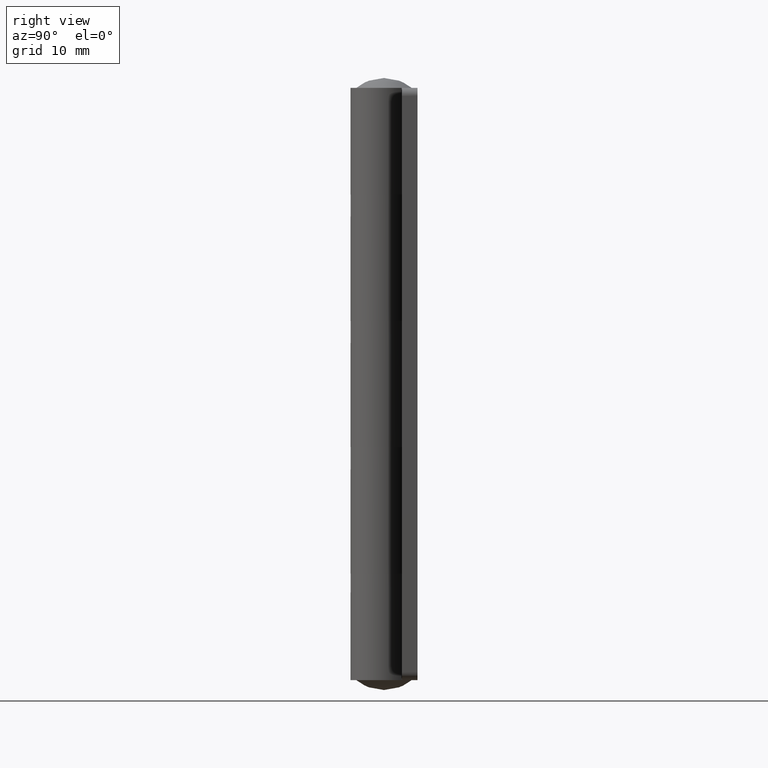
[diagram: clean part render]
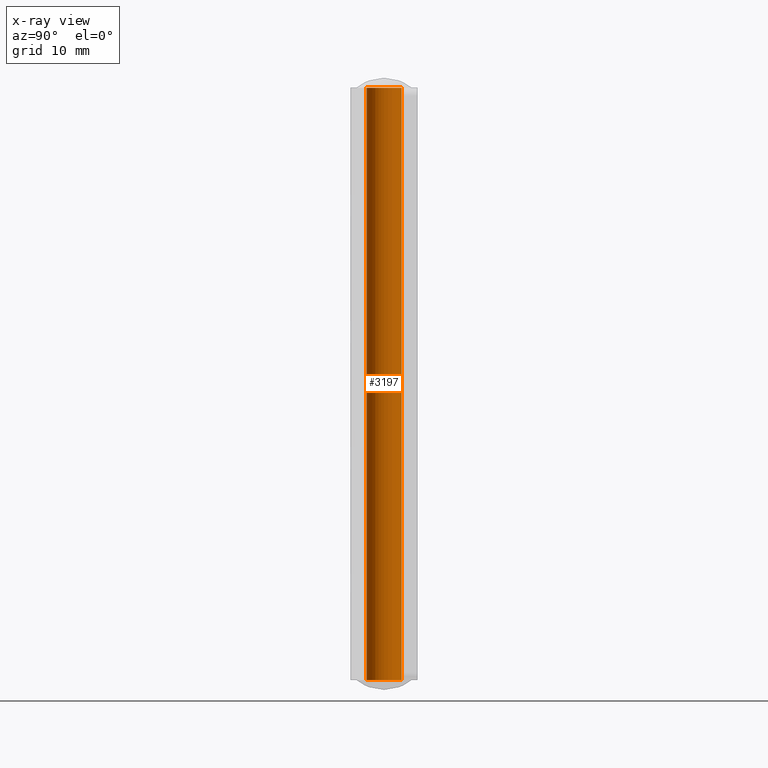
[diagram: x-ray — body ghosted, one internal face saturated and labeled with its STEP entity id]
A machine part, right view, then the same camera in x-ray: the body is ghosted and one INTERNAL B-rep face — a face not visible from any outside direction — is saturated and labeled: STEP entity #3197.
In plain terms, the highlighted face is a freeform B-spline surface patch.
Its self-contained STEP definition (entity closure, byte-faithful):
#3034=CARTESIAN_POINT('',(-0.265577028142498,2.234271434298561,-3.520891E-015));
#3035=VERTEX_POINT('',#3034);
#3053=CARTESIAN_POINT('',(-0.265577028142498,2.234271434298561,74.999985000000009));
#3054=VERTEX_POINT('',#3053);
#3055=CARTESIAN_POINT('',(-0.265577028142498,2.234271434298561,74.999985000000009));
#3056=CARTESIAN_POINT('',(-0.265577028142498,2.234271434298561,-3.520891E-015));
#3057=QUASI_UNIFORM_CURVE('',1,(#3055,#3056),.UNSPECIFIED.,.F.,.U.);
#3058=EDGE_CURVE('',#3054,#3035,#3057,.T.);
#3077=CARTESIAN_POINT('',(0.137359214180005,-2.245803296435242,74.999985000000009));
#3078=VERTEX_POINT('',#3077);
#3092=CARTESIAN_POINT('',(0.137359214180005,-2.245803296435242,-3.441691E-015));
#3093=VERTEX_POINT('',#3092);
#3094=CARTESIAN_POINT('',(0.137359214180005,-2.245803296435242,74.999985000000009));
#3095=CARTESIAN_POINT('',(0.137359214180005,-2.245803296435242,-3.441691E-015));
#3096=QUASI_UNIFORM_CURVE('',1,(#3094,#3095),.UNSPECIFIED.,.F.,.U.);
#3097=EDGE_CURVE('',#3078,#3093,#3096,.T.);
#3115=CARTESIAN_POINT('',(0.137359213953422,-2.245803296449100,76.874984625000025));
#3116=CARTESIAN_POINT('',(-2.108444082495679,-2.383162510402523,76.874984625000025));
#3117=CARTESIAN_POINT('',(-2.245803296449100,-0.137359213953422,76.874984625000025));
#3118=CARTESIAN_POINT('',(-2.375518942648081,1.983472854388789,76.874984625000025));
#3119=CARTESIAN_POINT('',(-0.265577027977695,2.234271434318151,76.874984625000053));
#3120=CARTESIAN_POINT('',(0.137359213953422,-2.245803296449100,-1.921874615625001));
#3121=CARTESIAN_POINT('',(-2.108444082495679,-2.383162510402523,-1.921874615625001));
#3122=CARTESIAN_POINT('',(-2.245803296449100,-0.137359213953422,-1.921874615625001));
#3123=CARTESIAN_POINT('',(-2.375518942648081,1.983472854388789,-1.921874615625001));
#3124=CARTESIAN_POINT('',(-0.265577027977695,2.234271434318151,-1.921874615625001));
#3132=(BOUNDED_SURFACE()B_SPLINE_SURFACE(2,1,((#3115,#3120),(#3116,#3121),(#3117,#3122),(#3118,#3123),(#3119,#3124)),.UNSPECIFIED.,.F.,.F.,.U.)B_SPLINE_SURFACE_WITH_KNOTS((3,2,3),(2,2),(0.0,3.727922061357689,7.306727240261070),(0.0,78.796859240625054),.UNSPECIFIED.)GEOMETRIC_REPRESENTATION_ITEM()RATIONAL_B_SPLINE_SURFACE(((1.0,1.0),(0.707106781186548,0.707106781186548),(1.0,1.0),(0.718822509939086,0.718822509939086),(0.977505800795127,0.977505800795127)))REPRESENTATION_ITEM('')SURFACE());
#3133=CARTESIAN_POINT('',(-2.249999999999900,0.0,0.0));
#3134=VERTEX_POINT('',#3133);
#3135=CARTESIAN_POINT('',(-2.249999999999900,0.0,0.0));
#3136=CARTESIAN_POINT('',(-2.249999999999899,1.998392683093605,0.0));
#3137=CARTESIAN_POINT('',(-0.265577028142498,2.234271434298562,-3.520891E-015));
#3145=(BOUNDED_CURVE()B_SPLINE_CURVE(2,(#3135,#3136,#3137),.UNSPECIFIED.,.F.,.U.)B_SPLINE_CURVE_WITH_KNOTS((3,3),(0.0,0.229562473490712),.UNSPECIFIED.)CURVE()GEOMETRIC_REPRESENTATION_ITEM()RATIONAL_B_SPLINE_CURVE((1.0,0.731050832882110,0.956026754139018))REPRESENTATION_ITEM(''));
#3146=EDGE_CURVE('',#3134,#3035,#3145,.T.);
#3147=ORIENTED_EDGE('',*,*,#3146,.F.);
#3148=CARTESIAN_POINT('',(0.137359214180005,-2.245803296435242,-3.441691E-015));
#3149=CARTESIAN_POINT('',(0.068743717649040,-2.249999999999900,0.0));
#3150=CARTESIAN_POINT('',(0.0,-2.249999999999900,0.0));
#3151=CARTESIAN_POINT('',(-2.249999999999900,-2.249999999999900,0.0));
#3152=CARTESIAN_POINT('',(-2.249999999999900,0.0,0.0));
#3160=(BOUNDED_CURVE()B_SPLINE_CURVE(2,(#3148,#3149,#3150,#3151,#3152),.UNSPECIFIED.,.F.,.U.)B_SPLINE_CURVE_WITH_KNOTS((3,2,3),(0.739332962207151,0.750000000000000,1.0),.UNSPECIFIED.)CURVE()GEOMETRIC_REPRESENTATION_ITEM()RATIONAL_B_SPLINE_CURVE((0.976072041598582,0.987502787862591,1.0,0.707106781186548,1.0))REPRESENTATION_ITEM(''));
#3161=EDGE_CURVE('',#3093,#3134,#3160,.T.);
#3162=ORIENTED_EDGE('',*,*,#3161,.F.);
#3163=ORIENTED_EDGE('',*,*,#3097,.F.);
#3164=CARTESIAN_POINT('',(-2.249999999999900,0.0,74.999985000000009));
#3165=VERTEX_POINT('',#3164);
#3166=CARTESIAN_POINT('',(0.137359214180005,-2.245803296435242,74.999985000000009));
#3167=CARTESIAN_POINT('',(0.068743717649040,-2.249999999999900,74.999985000000009));
#3168=CARTESIAN_POINT('',(0.0,-2.249999999999900,74.999985000000009));
#3169=CARTESIAN_POINT('',(-2.249999999999900,-2.249999999999900,74.999984999999995));
#3170=CARTESIAN_POINT('',(-2.249999999999900,0.0,74.999985000000009));
#3178=(BOUNDED_CURVE()B_SPLINE_CURVE(2,(#3166,#3167,#3168,#3169,#3170),.UNSPECIFIED.,.F.,.U.)B_SPLINE_CURVE_WITH_KNOTS((3,2,3),(0.739332962207151,0.750000000000000,1.0),.UNSPECIFIED.)CURVE()GEOMETRIC_REPRESENTATION_ITEM()RATIONAL_B_SPLINE_CURVE((0.976072041598582,0.987502787862591,1.0,0.707106781186548,1.0))REPRESENTATION_ITEM(''));
#3179=EDGE_CURVE('',#3078,#3165,#3178,.T.);
#3180=ORIENTED_EDGE('',*,*,#3179,.T.);
#3181=CARTESIAN_POINT('',(-2.249999999999900,0.0,74.999985000000009));
#3182=CARTESIAN_POINT('',(-2.249999999999899,1.998392683093605,74.999984999999995));
#3183=CARTESIAN_POINT('',(-0.265577028142498,2.234271434298562,74.999985000000009));
#3191=(BOUNDED_CURVE()B_SPLINE_CURVE(2,(#3181,#3182,#3183),.UNSPECIFIED.,.F.,.U.)B_SPLINE_CURVE_WITH_KNOTS((3,3),(0.0,0.229562473490712),.UNSPECIFIED.)CURVE()GEOMETRIC_REPRESENTATION_ITEM()RATIONAL_B_SPLINE_CURVE((1.0,0.731050832882110,0.956026754139018))REPRESENTATION_ITEM(''));
#3192=EDGE_CURVE('',#3165,#3054,#3191,.T.);
#3193=ORIENTED_EDGE('',*,*,#3192,.T.);
#3194=ORIENTED_EDGE('',*,*,#3058,.T.);
#3195=EDGE_LOOP('',(#3147,#3162,#3163,#3180,#3193,#3194));
#3196=FACE_OUTER_BOUND('',#3195,.T.);
#3197=ADVANCED_FACE('',(#3196),#3132,.T.);